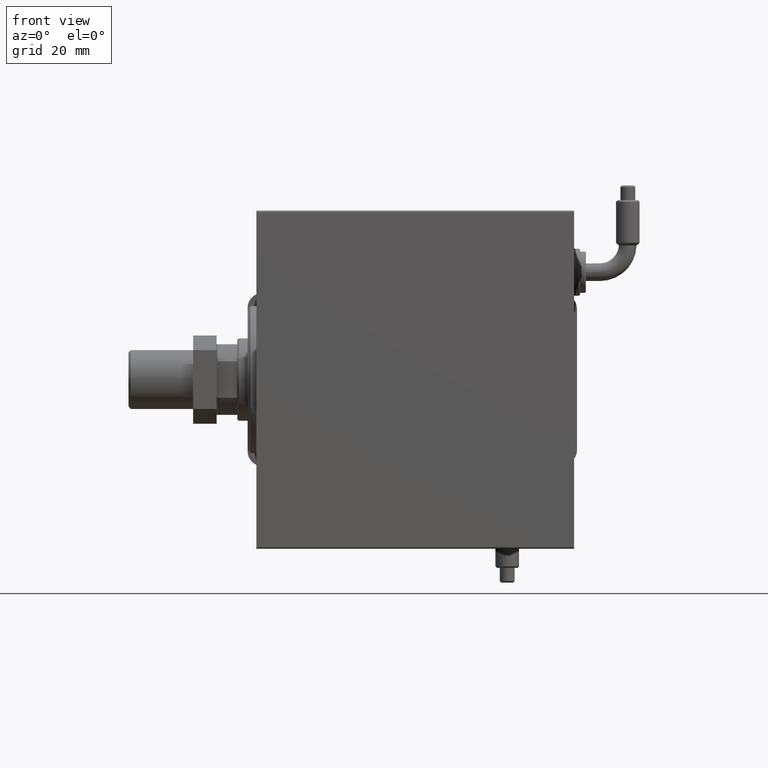
[diagram: clean part render]
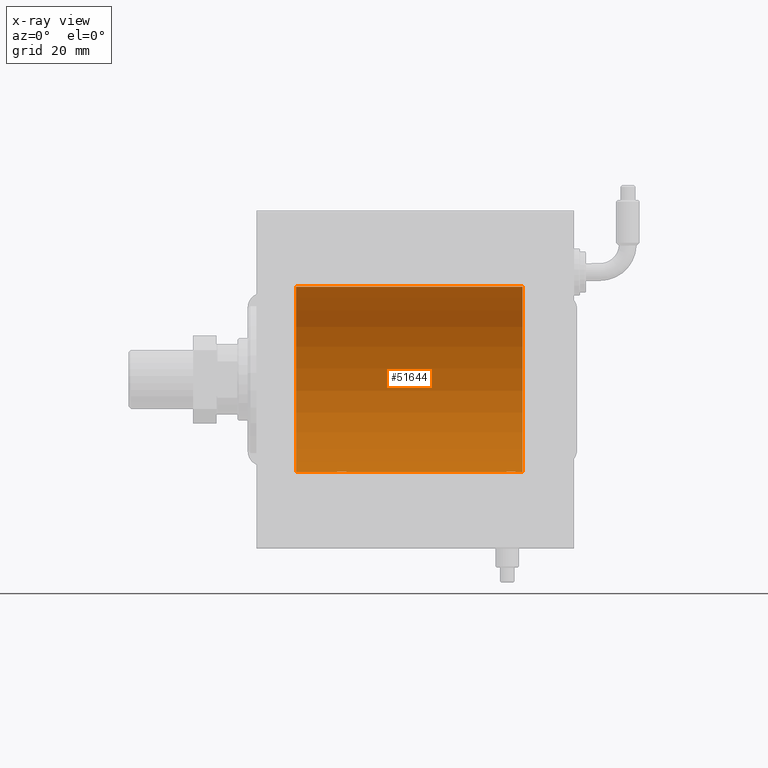
[diagram: x-ray — body ghosted, one internal face saturated and labeled with its STEP entity id]
A machine part, front view, then the same camera in x-ray: the body is ghosted and one INTERNAL B-rep face — a face not visible from any outside direction — is saturated and labeled: STEP entity #51644.
In plain terms, the highlighted cylindrical surface (partial cylindrical patch) has radius 31.5 mm, axis along (-1, -0, -0).
Its self-contained STEP definition (entity closure, byte-faithful):
#202 = DIRECTION ( 'NONE',  ( -1.000000000000000000, -0.000000000000000000, -0.000000000000000000 ) ) ;
#1377 = CARTESIAN_POINT ( 'NONE',  ( 90.50000000000000000, 0.000000000000000000, 31.50000000000000000 ) ) ;
#1621 = ORIENTED_EDGE ( 'NONE', *, *, #25171, .T. ) ;
#1661 = VERTEX_POINT ( 'NONE', #29862 ) ;
#2569 = DIRECTION ( 'NONE',  ( -1.000000000000000000, 0.000000000000000000, 0.000000000000000000 ) ) ;
#2978 = DIRECTION ( 'NONE',  ( -1.000000000000000000, -0.000000000000000000, -0.000000000000000000 ) ) ;
#3150 = CARTESIAN_POINT ( 'NONE',  ( 31.69631813776284446, 1.329867798385262478, -31.47244047903475206 ) ) ;
#3493 = DIRECTION ( 'NONE',  ( 0.000000000000000000, 0.000000000000000000, 1.000000000000000000 ) ) ;
#4061 = CARTESIAN_POINT ( 'NONE',  ( 26.15350786472692235, 0.9675486622706063189, -31.48566161620712478 ) ) ;
#4388 = AXIS2_PLACEMENT_3D ( 'NONE', #50036, #11893, #59439 ) ;
#4807 = DIRECTION ( 'NONE',  ( -1.000000000000000000, -0.000000000000000000, -0.000000000000000000 ) ) ;
#4930 = CARTESIAN_POINT ( 'NONE',  ( 85.72102991406853789, 2.903824817694229399, -31.36589387714387200 ) ) ;
#8141 = CARTESIAN_POINT ( 'NONE',  ( 27.49636865155423138, 2.603460270751690953, -31.39242096616744249 ) ) ;
#8238 = EDGE_CURVE ( 'NONE', #41872, #11740, #37144, .T. ) ;
#8371 = CARTESIAN_POINT ( 'NONE',  ( 89.50000000000000000, 3.857637396143758955E-15, -31.50000000000000000 ) ) ;
#8696 = CARTESIAN_POINT ( 'NONE',  ( 83.49999999999995737, 0.1983379036618822255, -31.49999999999999289 ) ) ;
#8754 = CARTESIAN_POINT ( 'NONE',  ( 27.01742588226807129, 2.260013192167871221, -31.41912713670170376 ) ) ;
#9002 = CARTESIAN_POINT ( 'NONE',  ( 84.11408373360522717, 1.829162098167810058, -31.44727042639135917 ) ) ;
#9060 = CARTESIAN_POINT ( 'NONE',  ( 31.90360737870091157, 0.7794402936641380286, -31.49094275383852093 ) ) ;
#9191 = LINE ( 'NONE', #37969, #17847 ) ;
#9927 = CARTESIAN_POINT ( 'NONE',  ( 89.40360737870091157, 0.7794402936641400270, -31.49094275383852093 ) ) ;
#11740 = VERTEX_POINT ( 'NONE', #8371 ) ;
#11893 = DIRECTION ( 'NONE',  ( -1.000000000000000000, -0.000000000000000000, -0.000000000000000000 ) ) ;
#12513 = CARTESIAN_POINT ( 'NONE',  ( 28.80311953966651828, 2.999928894260095014, -31.35682424344752306 ) ) ;
#12823 = CARTESIAN_POINT ( 'NONE',  ( 29.39359598051107625, 2.980533683278880464, -31.35869737338551388 ) ) ;
#13733 = CARTESIAN_POINT ( 'NONE',  ( 31.84686001605626515, 0.9664718879465930002, -31.48569500832682522 ) ) ;
#13988 = CARTESIAN_POINT ( 'NONE',  ( 89.49999999999995737, 0.1958503357044857618, -31.50000000000000000 ) ) ;
#14293 = CARTESIAN_POINT ( 'NONE',  ( 88.00442346703925978, 2.602863964129814356, -31.39246667950590464 ) ) ;
#14596 = CARTESIAN_POINT ( 'NONE',  ( 86.69470749274820776, 3.000070712257535632, -31.35681067529872479 ) ) ;
#15447 = CARTESIAN_POINT ( 'NONE',  ( 90.50000000000000000, 3.857637417314162689E-15, -31.50000000000000000 ) ) ;
#15496 = EDGE_CURVE ( 'NONE', #1661, #16831, #44702, .T. ) ;
#16356 = ORIENTED_EDGE ( 'NONE', *, *, #19612, .T. ) ;
#16410 = LINE ( 'NONE', #49560, #53992 ) ;
#16831 = VERTEX_POINT ( 'NONE', #44720 ) ;
#16857 = ORIENTED_EDGE ( 'NONE', *, *, #8238, .F. ) ;
#17199 = CARTESIAN_POINT ( 'NONE',  ( 26.30416028199503131, 1.330832861354125818, -31.47239936387596160 ) ) ;
#17507 = CARTESIAN_POINT ( 'NONE',  ( 29.19470749274824684, 3.000070712257530747, -31.35681067529873189 ) ) ;
#17820 = CARTESIAN_POINT ( 'NONE',  ( 30.32888955715863943, 2.696796994793641211, -31.38443855856935016 ) ) ;
#17847 = VECTOR ( 'NONE', #4807, 1000.000000000000000 ) ;
#18125 = CARTESIAN_POINT ( 'NONE',  ( 27.67084398834996506, 2.696575640577645316, -31.38445666459465500 ) ) ;
#18373 = CARTESIAN_POINT ( 'NONE',  ( 88.88511957348211467, 1.830131931565284864, -31.44721086712685931 ) ) ;
#18427 = CARTESIAN_POINT ( 'NONE',  ( 31.26105917453941174, 1.981627308739911442, -31.43792063499534351 ) ) ;
#18675 = CARTESIAN_POINT ( 'NONE',  ( 86.30311953966651117, 2.999928894260098122, -31.35682424344752306 ) ) ;
#18990 = CARTESIAN_POINT ( 'NONE',  ( 83.49999999999998579, -1.354660151018645615E-14, -31.50000000000000000 ) ) ;
#19292 = CARTESIAN_POINT ( 'NONE',  ( 88.76105917453936911, 1.981627308739911886, -31.43792063499533640 ) ) ;
#19612 = EDGE_CURVE ( 'NONE', #47340, #34528, #57113, .T. ) ;
#21836 = CARTESIAN_POINT ( 'NONE',  ( 32.00000000000000000, 3.857637396137448068E-15, -31.50000000000000000 ) ) ;
#21997 = EDGE_CURVE ( 'NONE', #32910, #34528, #16410, .T. ) ;
#22211 = CARTESIAN_POINT ( 'NONE',  ( 31.98037035466297340, 0.3947854228308261271, -31.49811339059600002 ) ) ;
#22483 = B_SPLINE_CURVE_WITH_KNOTS ( 'NONE', 3,
 ( #18990, #8696, #24299, #23073, #28068, #42776, #23689, #9002, #33691, #52143, #47771, #56222, #47148, #57154, #4930, #23378, #18675, #14596, #27761, #32461, #42162, #42465, #14293, #33384, #61241, #19292, #18373, #43081, #56527, #28693, #9927, #56842, #13988, #28996 ),
 .UNSPECIFIED., .F., .F.,
 ( 4, 2, 2, 2, 2, 2, 2, 2, 2, 2, 2, 2, 2, 2, 2, 2, 4 ),
 ( 7.959476811729351992E-19, 0.0005865426616959196378, 0.001173085323391838625, 0.001759627985087757179, 0.002346170646783675515, 0.002932713308479592985, 0.003519255970175510454, 0.004105798631871427490, 0.004692341293567344959, 0.005278883955263261561, 0.005865426616959179031, 0.006451969278655094765, 0.007038511940351012235, 0.007625054602046928837, 0.008211597263742844571, 0.008798139925438762041, 0.009384682587134677775 ),
 .UNSPECIFIED. ) ;
#22826 = CARTESIAN_POINT ( 'NONE',  ( 26.00000000000000355, 0.1983379036618887203, -31.50000000000000000 ) ) ;
#23073 = CARTESIAN_POINT ( 'NONE',  ( 83.59576193370266139, 0.7769457993854218536, -31.49100119919086183 ) ) ;
#23378 = CARTESIAN_POINT ( 'NONE',  ( 86.10837341225169439, 2.980875975682589551, -31.35866508162785848 ) ) ;
#23689 = CARTESIAN_POINT ( 'NONE',  ( 83.89633413559197095, 1.503114925126249890, -31.46454030768326149 ) ) ;
#24299 = CARTESIAN_POINT ( 'NONE',  ( 83.51947518102491586, 0.3933386891556544529, -31.49812829325315988 ) ) ;
#24595 = AXIS2_PLACEMENT_3D ( 'NONE', #35599, #55578, #26818 ) ;
#25171 = EDGE_CURVE ( 'NONE', #32910, #11740, #22483, .T. ) ;
#25521 = ORIENTED_EDGE ( 'NONE', *, *, #15496, .T. ) ;
#26507 = CARTESIAN_POINT ( 'NONE',  ( 90.50000000000000000, 3.857637417314162689E-15, -31.50000000000000000 ) ) ;
#26818 = DIRECTION ( 'NONE',  ( 0.000000000000000000, 0.000000000000000000, 1.000000000000000000 ) ) ;
#27205 = CARTESIAN_POINT ( 'NONE',  ( 31.38511957348212533, 1.830131931565279535, -31.44721086712685931 ) ) ;
#27761 = CARTESIAN_POINT ( 'NONE',  ( 86.89359598051107980, 2.980533683278883128, -31.35869737338551388 ) ) ;
#27820 = CARTESIAN_POINT ( 'NONE',  ( 28.03183834159290555, 2.846197268611679654, -31.37124163027859325 ) ) ;
#28068 = CARTESIAN_POINT ( 'NONE',  ( 83.65350786472691880, 0.9675486622706027662, -31.48566161620712478 ) ) ;
#28693 = CARTESIAN_POINT ( 'NONE',  ( 89.34686001605625449, 0.9664718879465948875, -31.48569500832683232 ) ) ;
#28996 = CARTESIAN_POINT ( 'NONE',  ( 89.50000000000000000, 3.857637396143758955E-15, -31.50000000000000000 ) ) ;
#29862 = CARTESIAN_POINT ( 'NONE',  ( 13.49999999999999822, 0.000000000000000000, 31.50000000000000000 ) ) ;
#30410 = CARTESIAN_POINT ( 'NONE',  ( 26.00000000000000355, -6.595038141055444136E-15, -31.50000000000000000 ) ) ;
#30726 = AXIS2_PLACEMENT_3D ( 'NONE', #54849, #2569, #3493 ) ;
#31448 = ORIENTED_EDGE ( 'NONE', *, *, #47264, .F. ) ;
#31593 = FACE_OUTER_BOUND ( 'NONE', #49587, .T. ) ;
#32181 = EDGE_CURVE ( 'NONE', #60197, #41872, #56559, .T. ) ;
#32461 = CARTESIAN_POINT ( 'NONE',  ( 87.27845839476661638, 2.903876953428271790, -31.36588880666518619 ) ) ;
#32516 = CARTESIAN_POINT ( 'NONE',  ( 26.39633413559198871, 1.503114925126252777, -31.46454030768326149 ) ) ;
#32910 = VERTEX_POINT ( 'NONE', #46970 ) ;
#33241 = ORIENTED_EDGE ( 'NONE', *, *, #21997, .F. ) ;
#33384 = CARTESIAN_POINT ( 'NONE',  ( 88.32938585467127268, 2.385694485610538873, -31.40971707706042437 ) ) ;
#33691 = CARTESIAN_POINT ( 'NONE',  ( 84.24075096623262482, 1.983444873066703584, -31.43779820687992554 ) ) ;
#34343 = ORIENTED_EDGE ( 'NONE', *, *, #32181, .F. ) ;
#34528 = VERTEX_POINT ( 'NONE', #21836 ) ;
#34799 = LINE ( 'NONE', #35113, #47000 ) ;
#35113 = CARTESIAN_POINT ( 'NONE',  ( 90.50000000000000000, 3.857637417314162689E-15, -31.50000000000000000 ) ) ;
#35599 = CARTESIAN_POINT ( 'NONE',  ( 90.50000000000000000, 0.000000000000000000, 0.000000000000000000 ) ) ;
#35615 = VECTOR ( 'NONE', #61222, 1000.000000000000000 ) ;
#36298 = CARTESIAN_POINT ( 'NONE',  ( 26.61408373360524138, 1.829162098167812056, -31.44727042639135917 ) ) ;
#36920 = CARTESIAN_POINT ( 'NONE',  ( 32.00000000000000711, 0.1958503357044868443, -31.50000000000000711 ) ) ;
#37144 = LINE ( 'NONE', #26507, #35615 ) ;
#37969 = CARTESIAN_POINT ( 'NONE',  ( 90.50000000000000000, 0.000000000000000000, 31.50000000000000000 ) ) ;
#40995 = CARTESIAN_POINT ( 'NONE',  ( 26.09576193370264718, 0.7769457993854247402, -31.49100119919085472 ) ) ;
#41872 = VERTEX_POINT ( 'NONE', #15447 ) ;
#41913 = CARTESIAN_POINT ( 'NONE',  ( 26.01947518102491230, 0.3933386891556586162, -31.49812829325316343 ) ) ;
#42162 = CARTESIAN_POINT ( 'NONE',  ( 87.46552780442063124, 2.847177118681587071, -31.37115363072576102 ) ) ;
#42465 = CARTESIAN_POINT ( 'NONE',  ( 87.82888955715861812, 2.696796994793646984, -31.38443855856933595 ) ) ;
#42776 = CARTESIAN_POINT ( 'NONE',  ( 83.80416028199505263, 1.330832861354123597, -31.47239936387597581 ) ) ;
#43081 = CARTESIAN_POINT ( 'NONE',  ( 89.10235869613066484, 1.505293155307507513, -31.46443304312125022 ) ) ;
#43532 = EDGE_CURVE ( 'NONE', #60197, #1661, #9191, .T. ) ;
#44702 = CIRCLE ( 'NONE', #30726, 31.50000000000000000 ) ;
#44720 = CARTESIAN_POINT ( 'NONE',  ( 13.49999999999999822, 3.857637417314162689E-15, -31.50000000000000000 ) ) ;
#45987 = CARTESIAN_POINT ( 'NONE',  ( 30.98088699125006684, 2.261707786034456991, -31.41901301017587755 ) ) ;
#46899 = CARTESIAN_POINT ( 'NONE',  ( 30.50442346703924557, 2.602863964129811691, -31.39246667950590464 ) ) ;
#46970 = CARTESIAN_POINT ( 'NONE',  ( 83.49999999999998579, -1.354660151018645615E-14, -31.50000000000000000 ) ) ;
#47000 = VECTOR ( 'NONE', #202, 1000.000000000000000 ) ;
#47148 = CARTESIAN_POINT ( 'NONE',  ( 85.17084398834997216, 2.696575640577646205, -31.38445666459465500 ) ) ;
#47264 = EDGE_CURVE ( 'NONE', #47340, #16831, #34799, .T. ) ;
#47340 = VERTEX_POINT ( 'NONE', #30410 ) ;
#47771 = CARTESIAN_POINT ( 'NONE',  ( 84.66841163972637219, 2.384155341399016859, -31.40983767558391193 ) ) ;
#49560 = CARTESIAN_POINT ( 'NONE',  ( 90.50000000000000000, 3.857637417314162689E-15, -31.50000000000000000 ) ) ;
#49587 = EDGE_LOOP ( 'NONE', ( #16857, #34343, #58144, #25521, #31448, #16356, #33241, #1621 ) ) ;
#50036 = CARTESIAN_POINT ( 'NONE',  ( 90.50000000000000000, 0.000000000000000000, 0.000000000000000000 ) ) ;
#50658 = CYLINDRICAL_SURFACE ( 'NONE', #4388, 31.50000000000000000 ) ;
#50974 = CARTESIAN_POINT ( 'NONE',  ( 27.16841163972636508, 2.384155341399014638, -31.40983767558391193 ) ) ;
#51281 = CARTESIAN_POINT ( 'NONE',  ( 29.77845839476659862, 2.903876953428271346, -31.36588880666517909 ) ) ;
#51644 = ADVANCED_FACE ( 'NONE', ( #31593 ), #50658, .F. ) ;
#52143 = CARTESIAN_POINT ( 'NONE',  ( 84.51742588226801445, 2.260013192167870333, -31.41912713670170376 ) ) ;
#53992 = VECTOR ( 'NONE', #2978, 1000.000000000000000 ) ;
#54849 = CARTESIAN_POINT ( 'NONE',  ( 13.49999999999999822, 0.000000000000000000, 0.000000000000000000 ) ) ;
#55350 = CARTESIAN_POINT ( 'NONE',  ( 29.96552780442064545, 2.847177118681580854, -31.37115363072576102 ) ) ;
#55578 = DIRECTION ( 'NONE',  ( -1.000000000000000000, 0.000000000000000000, 0.000000000000000000 ) ) ;
#55663 = CARTESIAN_POINT ( 'NONE',  ( 26.00000000000000355, -6.595038141055444136E-15, -31.50000000000000000 ) ) ;
#55979 = CARTESIAN_POINT ( 'NONE',  ( 28.22102991406854500, 2.903824817694228067, -31.36589387714387200 ) ) ;
#56222 = CARTESIAN_POINT ( 'NONE',  ( 84.99636865155420651, 2.603460270751694949, -31.39242096616744249 ) ) ;
#56527 = CARTESIAN_POINT ( 'NONE',  ( 89.19631813776284446, 1.329867798385264255, -31.47244047903475206 ) ) ;
#56559 = CIRCLE ( 'NONE', #24595, 31.50000000000000000 ) ;
#56585 = CARTESIAN_POINT ( 'NONE',  ( 31.60235869613065063, 1.505293155307500852, -31.46443304312125022 ) ) ;
#56842 = CARTESIAN_POINT ( 'NONE',  ( 89.48037035466298050, 0.3947854228308289026, -31.49811339059599291 ) ) ;
#57113 = B_SPLINE_CURVE_WITH_KNOTS ( 'NONE', 3,
 ( #55663, #22826, #41913, #40995, #4061, #17199, #32516, #36298, #60987, #8754, #50974, #8141, #18125, #27820, #55979, #60680, #12513, #17507, #12823, #51281, #55350, #17820, #46899, #61298, #45987, #18427, #27205, #56585, #3150, #13733, #9060, #22211, #36920, #60369 ),
 .UNSPECIFIED., .F., .F.,
 ( 4, 2, 2, 2, 2, 2, 2, 2, 2, 2, 2, 2, 2, 2, 2, 2, 4 ),
 ( 3.873361061910112284E-19, 0.0005865426616959168189, 0.001173085323391833204, 0.001759627985087749589, 0.002346170646783665974, 0.002932713308479582576, 0.003519255970175498745, 0.004105798631871414479, 0.004692341293567331081, 0.005278883955263247683, 0.005865426616959164285, 0.006451969278655080020, 0.007038511940350996622, 0.007625054602046913224, 0.008211597263742828959, 0.008798139925438746428, 0.009384682587134662163 ),
 .UNSPECIFIED. ) ;
#57154 = CARTESIAN_POINT ( 'NONE',  ( 85.53183834159290200, 2.846197268611682762, -31.37124163027859325 ) ) ;
#58144 = ORIENTED_EDGE ( 'NONE', *, *, #43532, .T. ) ;
#59439 = DIRECTION ( 'NONE',  ( 0.000000000000000000, 0.000000000000000000, 1.000000000000000000 ) ) ;
#60197 = VERTEX_POINT ( 'NONE', #1377 ) ;
#60369 = CARTESIAN_POINT ( 'NONE',  ( 32.00000000000000000, 3.857637396137448068E-15, -31.50000000000000000 ) ) ;
#60680 = CARTESIAN_POINT ( 'NONE',  ( 28.60837341225171215, 2.980875975682586443, -31.35866508162785848 ) ) ;
#60987 = CARTESIAN_POINT ( 'NONE',  ( 26.74075096623263548, 1.983444873066705805, -31.43779820687992554 ) ) ;
#61222 = DIRECTION ( 'NONE',  ( -1.000000000000000000, -0.000000000000000000, -0.000000000000000000 ) ) ;
#61241 = CARTESIAN_POINT ( 'NONE',  ( 88.48088699125005974, 2.261707786034459211, -31.41901301017587755 ) ) ;
#61298 = CARTESIAN_POINT ( 'NONE',  ( 30.82938585467129400, 2.385694485610535320, -31.40971707706042437 ) ) ;